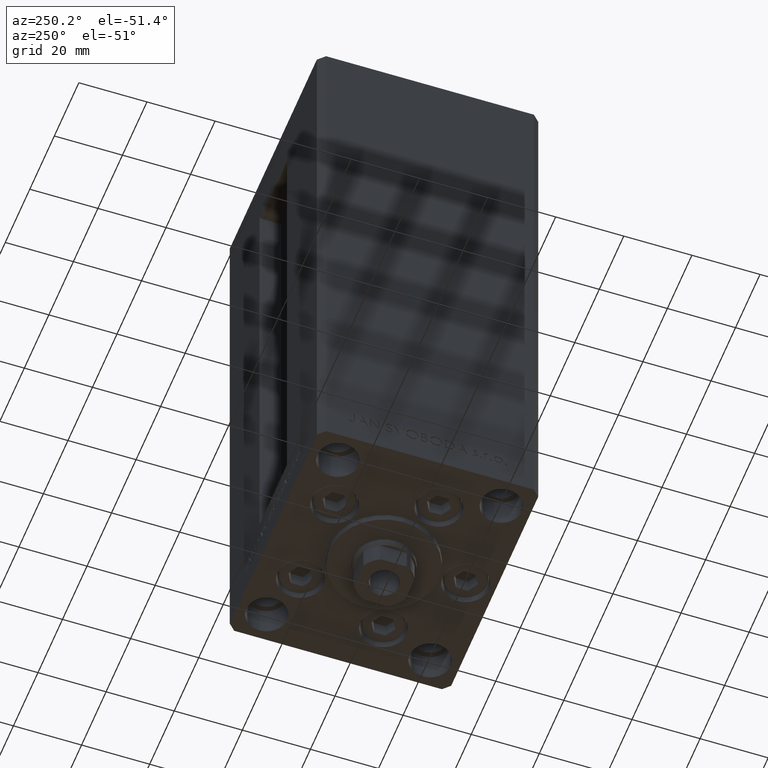
[diagram: clean part render]
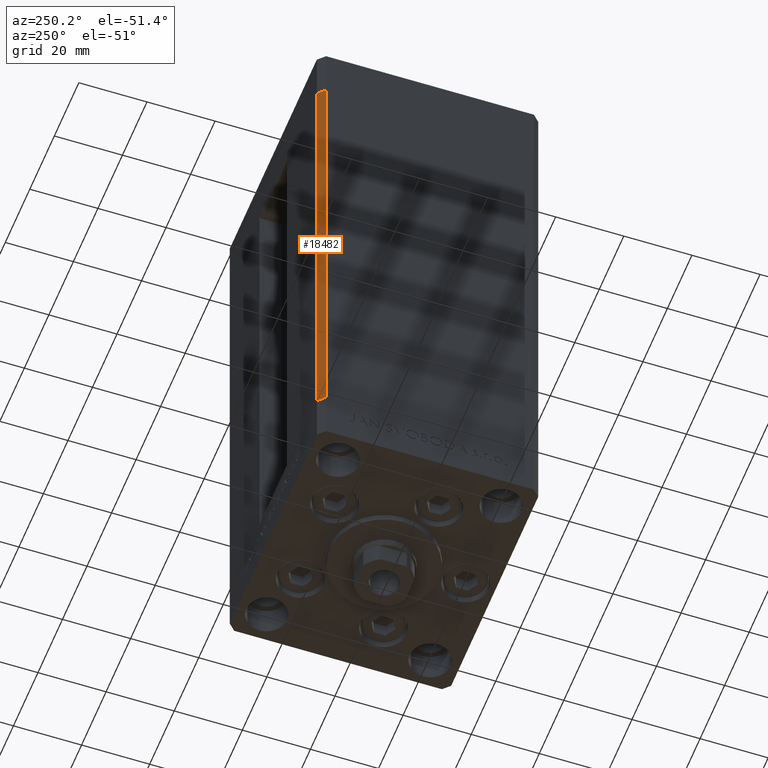
[diagram: same view with one face highlighted and labeled with its STEP entity id]
A machine part, auxiliary view. The second image highlights one B-rep face of the part: STEP entity #18482.
In plain terms, the highlighted planar face has unit normal (0.7071, -0.7071, 0).
Its self-contained STEP definition (entity closure, byte-faithful):
#3334 = CARTESIAN_POINT ( 'NONE',  ( -35.50000000000000000, 32.49999999999999289, 136.0000000000000000 ) ) ;
#4341 = EDGE_CURVE ( 'NONE', #36285, #46557, #13376, .T. ) ;
#4685 = LINE ( 'NONE', #27922, #25547 ) ;
#8393 = DIRECTION ( 'NONE',  ( -0.000000000000000000, -0.000000000000000000, -1.000000000000000000 ) ) ;
#8665 = DIRECTION ( 'NONE',  ( 0.7071067811865500152, 0.7071067811865451302, 0.000000000000000000 ) ) ;
#10249 = CARTESIAN_POINT ( 'NONE',  ( -35.50000000000000000, 32.49999999999999289, 0.000000000000000000 ) ) ;
#13376 = LINE ( 'NONE', #20541, #17594 ) ;
#15119 = ORIENTED_EDGE ( 'NONE', *, *, #4341, .T. ) ;
#16065 = VERTEX_POINT ( 'NONE', #20753 ) ;
#17594 = VECTOR ( 'NONE', #44025, 1000.000000000000114 ) ;
#17822 = CARTESIAN_POINT ( 'NONE',  ( -35.50000000000000000, 32.49999999999999289, 136.0000000000000000 ) ) ;
#18482 = ADVANCED_FACE ( 'NONE', ( #39085 ), #45765, .F. ) ;
#19074 = VERTEX_POINT ( 'NONE', #26777 ) ;
#19834 = AXIS2_PLACEMENT_3D ( 'NONE', #34876, #41814, #8665 ) ;
#20541 = CARTESIAN_POINT ( 'NONE',  ( -35.50000000000000000, 32.49999999999999289, 0.000000000000000000 ) ) ;
#20753 = CARTESIAN_POINT ( 'NONE',  ( -35.50000000000000000, 32.49999999999999289, 136.0000000000000000 ) ) ;
#21213 = VECTOR ( 'NONE', #28463, 1000.000000000000114 ) ;
#23294 = VECTOR ( 'NONE', #30755, 1000.000000000000000 ) ;
#25547 = VECTOR ( 'NONE', #8393, 1000.000000000000000 ) ;
#26777 = CARTESIAN_POINT ( 'NONE',  ( -37.50000000000000711, 30.50000000000000000, 136.0000000000000000 ) ) ;
#27903 = EDGE_CURVE ( 'NONE', #19074, #46557, #4685, .T. ) ;
#27922 = CARTESIAN_POINT ( 'NONE',  ( -37.50000000000000711, 30.50000000000000000, 136.0000000000000000 ) ) ;
#28463 = DIRECTION ( 'NONE',  ( -0.7071067811865500152, -0.7071067811865451302, 0.000000000000000000 ) ) ;
#29426 = ORIENTED_EDGE ( 'NONE', *, *, #32366, .T. ) ;
#30755 = DIRECTION ( 'NONE',  ( -0.000000000000000000, -0.000000000000000000, -1.000000000000000000 ) ) ;
#31629 = ORIENTED_EDGE ( 'NONE', *, *, #27903, .F. ) ;
#32366 = EDGE_CURVE ( 'NONE', #16065, #36285, #37211, .T. ) ;
#32999 = EDGE_LOOP ( 'NONE', ( #15119, #31629, #35318, #29426 ) ) ;
#34876 = CARTESIAN_POINT ( 'NONE',  ( -35.50000000000000000, 32.49999999999999289, 136.0000000000000000 ) ) ;
#35318 = ORIENTED_EDGE ( 'NONE', *, *, #44890, .F. ) ;
#36285 = VERTEX_POINT ( 'NONE', #10249 ) ;
#37211 = LINE ( 'NONE', #3334, #23294 ) ;
#39085 = FACE_OUTER_BOUND ( 'NONE', #32999, .T. ) ;
#41814 = DIRECTION ( 'NONE',  ( 0.7071067811865451302, -0.7071067811865500152, 0.000000000000000000 ) ) ;
#42147 = CARTESIAN_POINT ( 'NONE',  ( -37.50000000000000711, 30.50000000000000000, 0.000000000000000000 ) ) ;
#44025 = DIRECTION ( 'NONE',  ( -0.7071067811865500152, -0.7071067811865451302, 0.000000000000000000 ) ) ;
#44276 = LINE ( 'NONE', #17822, #21213 ) ;
#44890 = EDGE_CURVE ( 'NONE', #16065, #19074, #44276, .T. ) ;
#45765 = PLANE ( 'NONE',  #19834 ) ;
#46557 = VERTEX_POINT ( 'NONE', #42147 ) ;